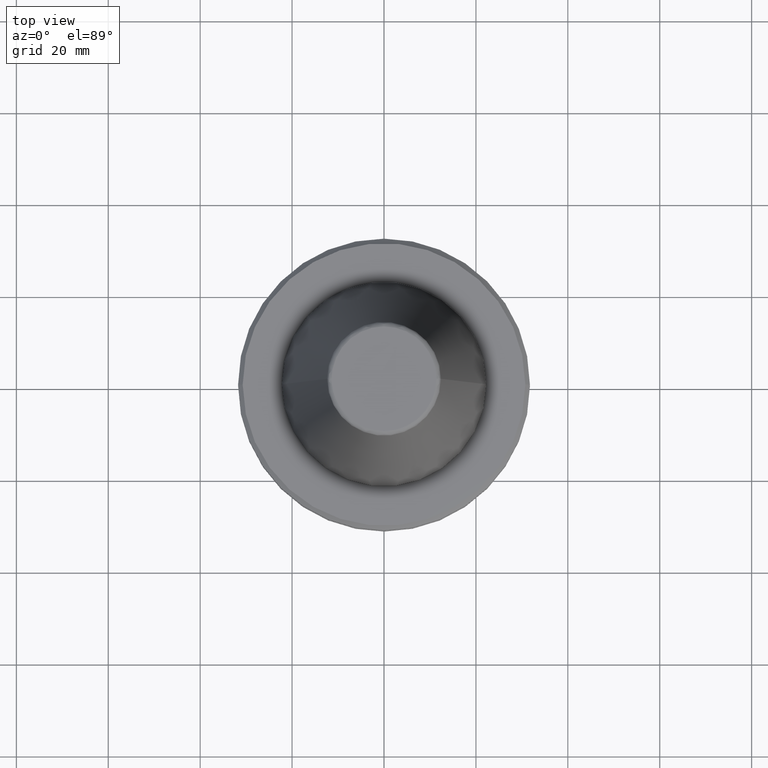
[diagram: clean part render]
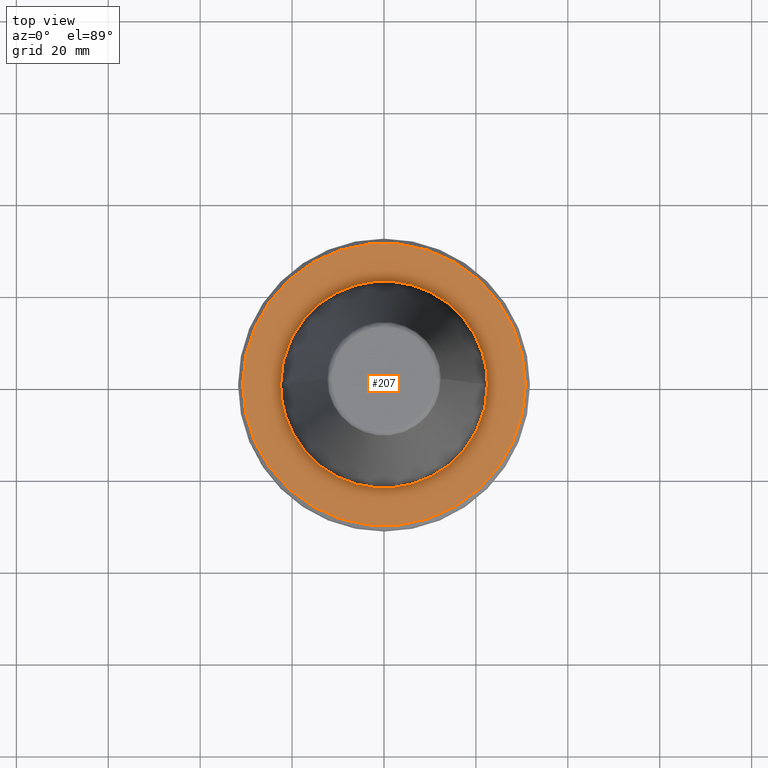
[diagram: same view with one face highlighted and labeled with its STEP entity id]
A machine part, top view. The second image highlights one B-rep face of the part: STEP entity #207.
In plain terms, the highlighted planar face has unit normal (0, 0, 1).
Its self-contained STEP definition (entity closure, byte-faithful):
#3 = CARTESIAN_POINT ( 'NONE',  ( -13.61204652640028800, -17.98264380950038800, -3.200000000000000200 ) ) ;
#4 = CARTESIAN_POINT ( 'NONE',  ( -17.98264380950361400, 13.61204652639205500, -3.199999999999999700 ) ) ;
#7 = CARTESIAN_POINT ( 'NONE',  ( -4.719991316688983800, 22.00072453872944300, -3.200000000000000600 ) ) ;
#11 = CARTESIAN_POINT ( 'NONE',  ( 3.797919010150632600, 22.17744484798479100, -3.200000000000000600 ) ) ;
#16 = CARTESIAN_POINT ( 'NONE',  ( 22.49999999999999600, -0.6880163828697204400, -3.199999999999998800 ) ) ;
#19 = CARTESIAN_POINT ( 'NONE',  ( 10.02279629557633300, 20.16961076430403600, -3.200000000000000600 ) ) ;
#22 = CARTESIAN_POINT ( 'NONE',  ( 22.13216582914422800, -4.051871761185046800, -3.199999999999999300 ) ) ;
#24 = CARTESIAN_POINT ( 'NONE',  ( 19.24838585783446000, 11.67597141481715200, -3.199999999999999700 ) ) ;
#28 = CARTESIAN_POINT ( 'NONE',  ( 19.18907189198100100, -11.75138774876444200, -3.200000000000001100 ) ) ;
#35 = CARTESIAN_POINT ( 'NONE',  ( -22.12045798509555200, -4.115310202398622300, -3.200000000000000200 ) ) ;
#41 = CARTESIAN_POINT ( 'NONE',  ( -3.946081902448917300, -22.15133589248955200, -3.200000000000000600 ) ) ;
#50 = CARTESIAN_POINT ( 'NONE',  ( 14.49938022714922100, -17.23607257882569900, -3.199999999999999300 ) ) ;
#66 = CARTESIAN_POINT ( 'NONE',  ( -22.13216582914423100, 4.051871761184235000, -3.200000000000000200 ) ) ;
#88 = CARTESIAN_POINT ( 'NONE',  ( -19.24838585782649900, -11.67597141482940200, -3.199999999999999700 ) ) ;
#100 = ORIENTED_EDGE ( 'NONE', *, *, #1181, .F. ) ;
#103 = CARTESIAN_POINT ( 'NONE',  ( -22.50000000000000400, 2.755455298081544800E-015, -3.199999999999999300 ) ) ;
#105 = CARTESIAN_POINT ( 'NONE',  ( -8.896980882711639900, 20.66783356944006700, -3.199999999999999700 ) ) ;
#111 = CARTESIAN_POINT ( 'NONE',  ( -20.64043889494947600, 8.988933404968230800, -3.200000000000000600 ) ) ;
#114 = DIRECTION ( 'NONE',  ( -1.000000000000000000, 0.0000000000000000000, 0.0000000000000000000 ) ) ;
#115 = ORIENTED_EDGE ( 'NONE', *, *, #595, .T. ) ;
#116 = CARTESIAN_POINT ( 'NONE',  ( -12.63533988221804100, 18.61742605470986000, -3.200000000000000200 ) ) ;
#120 = CARTESIAN_POINT ( 'NONE',  ( -11.75138774876684200, -19.18907189198004900, -3.200000000000000200 ) ) ;
#122 = CARTESIAN_POINT ( 'NONE',  ( -4.251028217307362100, 22.09485092206773900, -3.200000000000001100 ) ) ;
#128 = CARTESIAN_POINT ( 'NONE',  ( -4.071751450877116900, -22.12851860711453300, -3.199999999999999700 ) ) ;
#129 = CARTESIAN_POINT ( 'NONE',  ( 4.071751450878374500, 22.12851860711415200, -3.200000000000000200 ) ) ;
#132 = VERTEX_POINT ( 'NONE', #450 ) ;
#134 = CARTESIAN_POINT ( 'NONE',  ( 11.99256734167953400, 19.03780993567986700, -3.199999999999999300 ) ) ;
#137 = CARTESIAN_POINT ( 'NONE',  ( 22.13986916256529000, -4.009566559498702000, -3.199999999999999300 ) ) ;
#139 = CARTESIAN_POINT ( 'NONE',  ( 20.79589492657334300, 8.590524805355373800, -3.199999999999999300 ) ) ;
#143 = CARTESIAN_POINT ( 'NONE',  ( 18.93590339580105900, -12.15280497094321500, -3.200000000000000200 ) ) ;
#159 = CARTESIAN_POINT ( 'NONE',  ( -21.18878749287234700, -7.603831144579803700, -3.199999999999998800 ) ) ;
#162 = CARTESIAN_POINT ( 'NONE',  ( -3.797919010166013600, -22.17744484798386800, -3.200000000000001100 ) ) ;
#169 = CARTESIAN_POINT ( 'NONE',  ( -18.06135158014722800, -13.42792791066820300, -3.200000000000000600 ) ) ;
#170 = CARTESIAN_POINT ( 'NONE',  ( -22.50000000000000400, 2.755455298081544800E-015, -3.199999999999999300 ) ) ;
#191 = CIRCLE ( 'NONE', #1575, 30.74999999999994300 ) ;
#207 = ADVANCED_FACE ( 'NONE', ( #342, #1240 ), #631, .T. ) ;
#218 = CARTESIAN_POINT ( 'NONE',  ( -1.715646395057947200, -22.45307472456143200, -3.200000000000000600 ) ) ;
#233 = AXIS2_PLACEMENT_3D ( 'NONE', #1094, #1463, #990 ) ;
#238 = CARTESIAN_POINT ( 'NONE',  ( 8.988933404959995600, 20.64043889495324200, -3.200000000000000600 ) ) ;
#242 = CARTESIAN_POINT ( 'NONE',  ( 2.741286511513688400, -22.37475781689234500, -3.199999999999999700 ) ) ;
#244 = CARTESIAN_POINT ( 'NONE',  ( 22.17743819738469600, -3.797954953886299600, -3.200000000000000600 ) ) ;
#247 = CARTESIAN_POINT ( 'NONE',  ( -21.14787063409543700, 7.686207123284956900, -3.200000000000000200 ) ) ;
#254 = CARTESIAN_POINT ( 'NONE',  ( -12.39175045570897300, 18.78040064549299600, -3.199999999999999700 ) ) ;
#260 = CARTESIAN_POINT ( 'NONE',  ( -6.571610993404996200, 21.54071728403503300, -3.199999999999999700 ) ) ;
#265 = CARTESIAN_POINT ( 'NONE',  ( 5.873028755120320600, 21.74157624393063400, -3.200000000000000600 ) ) ;
#267 = EDGE_LOOP ( 'NONE', ( #100, #272 ) ) ;
#272 = ORIENTED_EDGE ( 'NONE', *, *, #958, .F. ) ;
#273 = CARTESIAN_POINT ( 'NONE',  ( 12.23098025896375600, 18.88550870197690300, -3.199999999999999700 ) ) ;
#276 = CARTESIAN_POINT ( 'NONE',  ( 21.99164062164117800, -4.811519987949947300, -3.200000000000000600 ) ) ;
#282 = CARTESIAN_POINT ( 'NONE',  ( 17.98264380952407700, -13.61204652636657500, -3.199999999999999700 ) ) ;
#284 = CARTESIAN_POINT ( 'NONE',  ( -8.197263642347373000, -20.95368502148340900, -3.199999999999999700 ) ) ;
#296 = CARTESIAN_POINT ( 'NONE',  ( -22.37479026312430700, -2.741111199249898400, -3.200000000000000600 ) ) ;
#303 = CARTESIAN_POINT ( 'NONE',  ( -8.112282896148109000, -20.98673507276421500, -3.200000000000000200 ) ) ;
#322 = CARTESIAN_POINT ( 'NONE',  ( 22.10760170058146200, 4.183831549483062200, -3.200000000000000200 ) ) ;
#339 = CARTESIAN_POINT ( 'NONE',  ( 22.50000000000000400, 0.0000000000000000000, -3.199999999999999300 ) ) ;
#342 = FACE_BOUND ( 'NONE', #1466, .T. ) ;
#343 = CARTESIAN_POINT ( 'NONE',  ( 5.341505914814308500, -21.86223353763812900, -3.199999999999999700 ) ) ;
#352 = CARTESIAN_POINT ( 'NONE',  ( -22.12851860711429500, 4.071751450877952600, -3.199999999999999300 ) ) ;
#368 = CARTESIAN_POINT ( 'NONE',  ( 20.88510905071724400, 8.370451108366499000, -3.200000000000001100 ) ) ;
#372 = CARTESIAN_POINT ( 'NONE',  ( -22.45304634867162000, 1.715799754908170300, -3.200000000000000600 ) ) ;
#378 = CARTESIAN_POINT ( 'NONE',  ( -7.984698353444732000, -21.03591195338748700, -3.200000000000000200 ) ) ;
#379 = CARTESIAN_POINT ( 'NONE',  ( -11.99256734168715800, -19.03780993567515600, -3.200000000000000200 ) ) ;
#380 = CARTESIAN_POINT ( 'NONE',  ( -19.53083148215308600, 11.18287332202958400, -3.199999999999999300 ) ) ;
#385 = CARTESIAN_POINT ( 'NONE',  ( 8.458563634139736100, -20.84958280862343500, -3.200000000000000600 ) ) ;
#386 = CARTESIAN_POINT ( 'NONE',  ( -10.69502432680689100, 19.82135572082859200, -3.200000000000000600 ) ) ;
#389 = CARTESIAN_POINT ( 'NONE',  ( -20.93772414133938800, 8.237955812653009200, -3.200000000000000200 ) ) ;
#390 = CARTESIAN_POINT ( 'NONE',  ( -22.06440325785796100, -4.407618502892575000, -3.200000000000000200 ) ) ;
#391 = CARTESIAN_POINT ( 'NONE',  ( -4.407618502888016800, 22.06440325785875700, -3.199999999999999300 ) ) ;
#395 = CARTESIAN_POINT ( 'NONE',  ( 7.984698353428139100, 21.03591195339260300, -3.200000000000000200 ) ) ;
#400 = CARTESIAN_POINT ( 'NONE',  ( 14.81177920650271000, 17.00797338683744500, -3.200000000000000600 ) ) ;
#402 = CARTESIAN_POINT ( 'NONE',  ( 21.14787063408966400, -7.686207123305460500, -3.200000000000000600 ) ) ;
#405 = CARTESIAN_POINT ( 'NONE',  ( 20.84958280862257900, 8.458563634141711400, -3.200000000000000200 ) ) ;
#408 = CARTESIAN_POINT ( 'NONE',  ( -22.31609819896381800, 2.907458251726792000, -3.199999999999999700 ) ) ;
#416 = CARTESIAN_POINT ( 'NONE',  ( 1.375857497312903900, -22.49996757041163400, -3.199999999999999300 ) ) ;
#422 = CARTESIAN_POINT ( 'NONE',  ( 22.00072453873180600, 4.719991316681966300, -3.200000000000000200 ) ) ;
#449 = CARTESIAN_POINT ( 'NONE',  ( 4.251028217301676900, -22.09485092206981000, -3.200000000000000200 ) ) ;
#450 = CARTESIAN_POINT ( 'NONE',  ( -30.74999999999994300, 0.0000000000000000000, -3.200000000000036100 ) ) ;
#455 = CARTESIAN_POINT ( 'NONE',  ( -22.22708190165376200, 3.501431974159047400, -3.199999999999999700 ) ) ;
#460 = CARTESIAN_POINT ( 'NONE',  ( 22.50000000000000400, 0.0000000000000000000, -3.199999999999999300 ) ) ;
#463 = CARTESIAN_POINT ( 'NONE',  ( -20.84958280862066700, -8.458563634144654800, -3.200000000000000600 ) ) ;
#488 = CARTESIAN_POINT ( 'NONE',  ( -14.81177920650302200, -17.00797338683712900, -3.199999999999999300 ) ) ;
#497 = CARTESIAN_POINT ( 'NONE',  ( -18.93590339580232400, 12.15280497094196100, -3.199999999999999700 ) ) ;
#500 = CARTESIAN_POINT ( 'NONE',  ( -20.90345235396920400, -8.324524703927284700, -3.199999999999999700 ) ) ;
#501 = CARTESIAN_POINT ( 'NONE',  ( -8.458563634142274500, 20.84958280862222700, -3.200000000000000200 ) ) ;
#503 = CARTESIAN_POINT ( 'NONE',  ( 12.47437238289376500, -18.72563884435562500, -3.200000000000000600 ) ) ;
#506 = CARTESIAN_POINT ( 'NONE',  ( -1.375857497237935400, 22.49996757040714000, -3.199999999999999700 ) ) ;
#509 = B_SPLINE_CURVE_WITH_KNOTS ( 'NONE', 3,
 ( #170, #725, #372, #408, #455, #1250, #536, #530, #66, #352, #1428, #949, #1582, #247, #606, #727, #1293, #389, #111, #955, #380, #1066, #1433, #497, #1194, #4, #1418, #1314, #619, #848, #735, #116, #963, #254, #1070, #386, #1202, #105, #624, #501, #1317, #738, #1439, #260, #851, #7, #391, #122, #1569, #967, #1207, #1078, #506, #1322, #630, #1444, #743, #11, #973, #944, #855, #129, #1083, #265, #639, #1211, #395, #747, #511, #1328, #238, #19, #1448, #859, #134, #978, #273, #1087, #400, #1334, #1218, #1061, #516, #1454, #644, #983, #24, #752, #1096, #866, #139, #405, #368, #1518, #560, #1489, #912, #422, #673, #1269, #322, #1560, #1533, #1389, #576, #339 ),
 .UNSPECIFIED., .F., .F.,
 ( 4, 1, 1, 1, 1, 1, 2, 2, 1, 1, 1, 1, 2, 2, 1, 1, 1, 2, 2, 2, 1, 1, 1, 2, 2, 1, 1, 1, 1, 2, 2, 1, 1, 1, 1, 1, 2, 2, 2, 1, 1, 1, 1, 1, 2, 2, 1, 1, 1, 1, 2, 2, 1, 1, 1, 2, 2, 2, 1, 1, 1, 2, 2, 1, 1, 1, 1, 2, 2, 1, 1, 1, 1, 1, 2, 2, 4 ),
 ( 0.0000000000000000000, 0.03124999999999839000, 0.04687499999999758500, 0.05468749999999717600, 0.05859374999999699500, 0.06054687499999689800, 0.06152343749999685700, 0.06249999999999680800, 0.09374999999999644700, 0.1093749999999962800, 0.1171874999999962000, 0.1210937499999961300, 0.1230468749999961400, 0.1249999999999961400, 0.1562499999999958900, 0.1718749999999958400, 0.1796874999999957800, 0.1835937499999957800, 0.1874999999999957800, 0.2499999999999961100, 0.2812499999999963400, 0.2968749999999964500, 0.3046874999999965000, 0.3085937499999965600, 0.3124999999999965600, 0.3437499999999969500, 0.3593749999999971700, 0.3671874999999973400, 0.3710937499999974500, 0.3730468749999974500, 0.3749999999999974500, 0.4062499999999965000, 0.4218749999999960000, 0.4296874999999957800, 0.4335937499999956700, 0.4355468749999956100, 0.4365234374999956100, 0.4374999999999956100, 0.4999999999999944500, 0.5312499999999938900, 0.5468749999999936700, 0.5546874999999936700, 0.5585937499999935600, 0.5605468749999935600, 0.5615234374999934500, 0.5624999999999934500, 0.5937499999999932300, 0.6093749999999931200, 0.6171874999999931200, 0.6210937499999930100, 0.6230468749999930100, 0.6249999999999930100, 0.6562499999999930100, 0.6718749999999931200, 0.6796874999999932300, 0.6835937499999932300, 0.6874999999999932300, 0.7499999999999935600, 0.7812499999999936700, 0.7968749999999937800, 0.8046874999999938900, 0.8085937499999938900, 0.8124999999999938900, 0.8437499999999942300, 0.8593749999999944500, 0.8671874999999946700, 0.8710937499999947800, 0.8730468749999948900, 0.8749999999999950000, 0.9062499999999963400, 0.9218749999999971100, 0.9296874999999975600, 0.9335937499999976700, 0.9355468749999977800, 0.9365234374999977800, 0.9374999999999978900, 1.000000000000000000 ),
 .UNSPECIFIED. ) ;
#511 = CARTESIAN_POINT ( 'NONE',  ( 8.197263642342381500, 20.95368502148494400, -3.199999999999999700 ) ) ;
#516 = CARTESIAN_POINT ( 'NONE',  ( 18.45365423866382000, 12.87560569879649600, -3.200000000000000200 ) ) ;
#521 = CARTESIAN_POINT ( 'NONE',  ( 20.64043889494423200, -8.988933404973398200, -3.200000000000001100 ) ) ;
#530 = CARTESIAN_POINT ( 'NONE',  ( -22.13986916256529700, 4.009566559497096200, -3.200000000000000200 ) ) ;
#536 = CARTESIAN_POINT ( 'NONE',  ( -22.15133245634663700, 3.946100473368277900, -3.200000000000000200 ) ) ;
#540 = CARTESIAN_POINT ( 'NONE',  ( 4.115307463144500100, -22.12045849206793200, -3.200000000000000600 ) ) ;
#560 = CARTESIAN_POINT ( 'NONE',  ( 21.18878749287739200, 7.603831144559534600, -3.200000000000000600 ) ) ;
#576 = CARTESIAN_POINT ( 'NONE',  ( 22.50000000000000400, 1.376388306145680500, -3.200000000000000200 ) ) ;
#590 = CARTESIAN_POINT ( 'NONE',  ( 10.69502432678837800, -19.82135572083744200, -3.199999999999999700 ) ) ;
#595 = EDGE_CURVE ( 'NONE', #1098, #1411, #509, .T. ) ;
#606 = CARTESIAN_POINT ( 'NONE',  ( -21.03591195339058500, 7.984698353433742600, -3.200000000000000600 ) ) ;
#613 = CARTESIAN_POINT ( 'NONE',  ( -7.686207123305462300, -21.14787063408966000, -3.200000000000000600 ) ) ;
#618 = CARTESIAN_POINT ( 'NONE',  ( -19.82135572081725200, -10.69502432682423000, -3.200000000000000600 ) ) ;
#619 = CARTESIAN_POINT ( 'NONE',  ( -14.49938022714616500, 17.23607257882436300, -3.199999999999999700 ) ) ;
#624 = CARTESIAN_POINT ( 'NONE',  ( -8.590524805356333000, 20.79589492657273900, -3.199999999999999700 ) ) ;
#630 = CARTESIAN_POINT ( 'NONE',  ( 1.715646394992351700, 22.45307472456536100, -3.200000000000000600 ) ) ;
#631 = PLANE ( 'NONE',  #233 ) ;
#639 = CARTESIAN_POINT ( 'NONE',  ( 7.086048807648322300, 21.36063849916836300, -3.200000000000000600 ) ) ;
#642 = CARTESIAN_POINT ( 'NONE',  ( 22.31609819896382200, -2.907458251744042200, -3.200000000000000600 ) ) ;
#644 = CARTESIAN_POINT ( 'NONE',  ( 18.72563884435662000, 12.47437238289156800, -3.199999999999999300 ) ) ;
#646 = CARTESIAN_POINT ( 'NONE',  ( 19.53083148214621900, -11.18287332203636600, -3.200000000000000200 ) ) ;
#673 = CARTESIAN_POINT ( 'NONE',  ( 22.06440325786003600, 4.407618502884258900, -3.200000000000000200 ) ) ;
#679 = CARTESIAN_POINT ( 'NONE',  ( 30.74999999999994300, 3.827021247335477300E-015, -3.200000000000036100 ) ) ;
#697 = CARTESIAN_POINT ( 'NONE',  ( -16.45896426179448100, -15.36086717162741000, -3.200000000000001100 ) ) ;
#725 = CARTESIAN_POINT ( 'NONE',  ( -22.50000000000000700, 0.6880163828565797300, -3.200000000000001100 ) ) ;
#727 = CARTESIAN_POINT ( 'NONE',  ( -20.98673507276603100, 8.112282896141666200, -3.200000000000000600 ) ) ;
#733 = CARTESIAN_POINT ( 'NONE',  ( -18.61742605471202700, -12.63533988221470800, -3.199999999999999700 ) ) ;
#735 = CARTESIAN_POINT ( 'NONE',  ( -12.87560569880213800, 18.45365423866010000, -3.200000000000001100 ) ) ;
#738 = CARTESIAN_POINT ( 'NONE',  ( -8.324524703927975700, 20.90345235396907600, -3.199999999999999700 ) ) ;
#743 = CARTESIAN_POINT ( 'NONE',  ( 3.501364879195867800, 22.22709431610727600, -3.200000000000000600 ) ) ;
#747 = CARTESIAN_POINT ( 'NONE',  ( 8.112282896138385300, 20.98673507276721400, -3.200000000000000200 ) ) ;
#749 = CARTESIAN_POINT ( 'NONE',  ( 22.15133245634663300, -3.946100473371058700, -3.199999999999999700 ) ) ;
#752 = CARTESIAN_POINT ( 'NONE',  ( 19.82135572083119300, 10.69502432680279600, -3.200000000000000600 ) ) ;
#753 = CARTESIAN_POINT ( 'NONE',  ( 20.16961076428826500, -10.02279629559978100, -3.199999999999998800 ) ) ;
#766 = CARTESIAN_POINT ( 'NONE',  ( 4.407618502877016700, -22.06440325786277500, -3.200000000000000600 ) ) ;
#771 = CARTESIAN_POINT ( 'NONE',  ( -22.00072453872795100, -4.719991316697491600, -3.200000000000000600 ) ) ;
#817 = CARTESIAN_POINT ( 'NONE',  ( 7.603831144541866000, -21.18878749288407800, -3.200000000000000200 ) ) ;
#824 = CARTESIAN_POINT ( 'NONE',  ( -18.78040064549380300, -12.39175045570773800, -3.200000000000000600 ) ) ;
#848 = CARTESIAN_POINT ( 'NONE',  ( -13.42792791067768300, 18.06135158014102500, -3.200000000000000200 ) ) ;
#850 = CARTESIAN_POINT ( 'NONE',  ( -22.10760170058084000, -4.183831549485550900, -3.200000000000000200 ) ) ;
#851 = CARTESIAN_POINT ( 'NONE',  ( -5.341505914849514100, 21.86223353762529300, -3.200000000000000600 ) ) ;
#854 = CARTESIAN_POINT ( 'NONE',  ( -8.237955812652499400, -20.93772414133978200, -3.199999999999999700 ) ) ;
#855 = CARTESIAN_POINT ( 'NONE',  ( 4.051866326834534100, 22.13216683465163800, -3.200000000000001100 ) ) ;
#859 = CARTESIAN_POINT ( 'NONE',  ( 11.75138774875418000, 19.18907189198790100, -3.200000000000001100 ) ) ;
#863 = CARTESIAN_POINT ( 'NONE',  ( 22.12851860711453600, -4.071751450877114200, -3.200000000000000200 ) ) ;
#866 = CARTESIAN_POINT ( 'NONE',  ( 20.66783356944120300, 8.896980882709847500, -3.200000000000000200 ) ) ;
#868 = CARTESIAN_POINT ( 'NONE',  ( 19.03780993567572800, -11.99256734168571200, -3.200000000000000200 ) ) ;
#880 = CARTESIAN_POINT ( 'NONE',  ( 12.87560569880346700, -18.45365423866068300, -3.200000000000000600 ) ) ;
#888 = CARTESIAN_POINT ( 'NONE',  ( -2.907343231839132800, -22.31611948088118800, -3.200000000000000600 ) ) ;
#898 = CARTESIAN_POINT ( 'NONE',  ( 13.42792791067997600, -18.06135158014202000, -3.199999999999999700 ) ) ;
#912 = CARTESIAN_POINT ( 'NONE',  ( 21.86223353762935800, 5.341505914837489000, -3.200000000000000600 ) ) ;
#930 = CARTESIAN_POINT ( 'NONE',  ( 0.0000000000000000000, 0.0000000000000000000, -3.200000000000036100 ) ) ;
#933 = CARTESIAN_POINT ( 'NONE',  ( -12.15280497094398100, -18.93590339580075400, -3.199999999999999700 ) ) ;
#944 = CARTESIAN_POINT ( 'NONE',  ( 4.009555819168163300, 22.13987114982794000, -3.199999999999999700 ) ) ;
#948 = CARTESIAN_POINT ( 'NONE',  ( -0.6879287486564484900, -22.50001621479418300, -3.200000000000000200 ) ) ;
#949 = CARTESIAN_POINT ( 'NONE',  ( -21.74157624392201900, 5.873028755144217100, -3.200000000000000200 ) ) ;
#951 = CARTESIAN_POINT ( 'NONE',  ( -22.50000000000000400, 2.755455298081544800E-015, -3.199999999999999300 ) ) ;
#953 = CARTESIAN_POINT ( 'NONE',  ( -4.051866326836864700, -22.13216683465148900, -3.199999999999999700 ) ) ;
#955 = CARTESIAN_POINT ( 'NONE',  ( -20.16961076429744200, 10.02279629559074100, -3.199999999999999300 ) ) ;
#958 = EDGE_CURVE ( 'NONE', #1532, #132, #976, .T. ) ;
#963 = CARTESIAN_POINT ( 'NONE',  ( -12.47437238289334600, 18.72563884435544800, -3.200000000000000200 ) ) ;
#966 = CARTESIAN_POINT ( 'NONE',  ( -22.11603594838243900, -4.139014538617989700, -3.200000000000000600 ) ) ;
#967 = CARTESIAN_POINT ( 'NONE',  ( -4.139014538617297000, 22.11603594838256000, -3.200000000000000200 ) ) ;
#971 = CARTESIAN_POINT ( 'NONE',  ( -5.873028755191068500, -21.74157624390884200, -3.200000000000001100 ) ) ;
#973 = CARTESIAN_POINT ( 'NONE',  ( 3.946081902440961000, 22.15133589249003200, -3.200000000000000600 ) ) ;
#976 = CIRCLE ( 'NONE', #1060, 30.74999999999994300 ) ;
#978 = CARTESIAN_POINT ( 'NONE',  ( 12.15280497093997500, 18.93590339580323000, -3.200000000000000200 ) ) ;
#980 = CARTESIAN_POINT ( 'NONE',  ( 21.74157624390884500, -5.873028755191072900, -3.200000000000000200 ) ) ;
#981 = CARTESIAN_POINT ( 'NONE',  ( -17.23607257883263300, -14.49938022713351800, -3.200000000000000200 ) ) ;
#983 = CARTESIAN_POINT ( 'NONE',  ( 18.78040064549280100, 12.39175045570927500, -3.199999999999998800 ) ) ;
#985 = CARTESIAN_POINT ( 'NONE',  ( 18.88550870197563500, -12.23098025896565000, -3.200000000000000200 ) ) ;
#989 = B_SPLINE_CURVE_WITH_KNOTS ( 'NONE', 3,
 ( #1214, #16, #1329, #642, #1450, #244, #749, #137, #22, #863, #276, #980, #1337, #402, #1090, #1456, #1404, #1220, #521, #753, #646, #28, #868, #143, #985, #282, #1099, #1577, #50, #898, #880, #1200, #503, #1280, #1544, #590, #1438, #1201, #1548, #385, #1039, #1401, #817, #1156, #343, #999, #766, #449, #1480, #1304, #540, #242, #416, #948, #218, #888, #1235, #162, #41, #1166, #953, #128, #1046, #971, #1309, #613, #378, #303, #284, #854, #1063, #1441, #1192, #120, #379, #933, #1427, #3, #488, #697, #981, #169, #1103, #733, #1184, #824, #88, #618, #1469, #1462, #1352, #463, #1111, #500, #159, #994, #1442, #771, #390, #1077, #850, #966, #35, #296, #1097, #103 ),
 .UNSPECIFIED., .F., .F.,
 ( 4, 1, 1, 1, 1, 1, 2, 2, 1, 1, 1, 1, 2, 2, 1, 1, 1, 2, 2, 2, 1, 1, 1, 2, 2, 1, 1, 1, 1, 2, 2, 1, 1, 1, 1, 1, 2, 2, 2, 1, 1, 1, 1, 1, 2, 2, 1, 1, 1, 1, 2, 2, 1, 1, 1, 2, 2, 2, 1, 1, 1, 2, 2, 1, 1, 1, 1, 2, 2, 1, 1, 1, 1, 1, 2, 2, 4 ),
 ( 0.0000000000000000000, 0.03124999999999908400, 0.04687499999999860500, 0.05468749999999836900, 0.05859374999999825800, 0.06054687499999819600, 0.06152343749999818900, 0.06249999999999818200, 0.09374999999999732200, 0.1093749999999968900, 0.1171874999999966700, 0.1210937499999965400, 0.1230468749999965400, 0.1249999999999965300, 0.1562499999999963600, 0.1718749999999962500, 0.1796874999999961700, 0.1835937499999960900, 0.1874999999999960000, 0.2499999999999953400, 0.2812499999999949500, 0.2968749999999948400, 0.3046874999999947800, 0.3085937499999947800, 0.3124999999999947800, 0.3437499999999951200, 0.3593749999999953400, 0.3671874999999953900, 0.3710937499999954500, 0.3730468749999955000, 0.3749999999999955600, 0.4062499999999958400, 0.4218749999999960000, 0.4296874999999960600, 0.4335937499999960600, 0.4355468749999960600, 0.4365234374999960600, 0.4374999999999960000, 0.4999999999999953400, 0.5312499999999950000, 0.5468749999999947800, 0.5546874999999946700, 0.5585937499999946700, 0.5605468749999945600, 0.5615234374999945600, 0.5624999999999944500, 0.5937499999999942300, 0.6093749999999941200, 0.6171874999999940000, 0.6210937499999938900, 0.6230468749999940000, 0.6249999999999940000, 0.6562499999999947800, 0.6718749999999952300, 0.6796874999999954500, 0.6835937499999955600, 0.6874999999999955600, 0.7499999999999982200, 0.7812499999999995600, 0.7968750000000002200, 0.8046875000000005600, 0.8085937500000007800, 0.8125000000000008900, 0.8437500000000022200, 0.8593750000000028900, 0.8671875000000032200, 0.8710937500000033300, 0.8730468750000034400, 0.8750000000000034400, 0.9062500000000028900, 0.9218750000000026600, 0.9296875000000025500, 0.9335937500000024400, 0.9355468750000023300, 0.9365234375000023300, 0.9375000000000022200, 1.000000000000000000 ),
 .UNSPECIFIED. ) ;
#990 = DIRECTION ( 'NONE',  ( 1.000000000000000000, 0.0000000000000000000, -0.0000000000000000000 ) ) ;
#994 = CARTESIAN_POINT ( 'NONE',  ( -21.54071728403163600, -6.571610993424445500, -3.200000000000000600 ) ) ;
#999 = CARTESIAN_POINT ( 'NONE',  ( 4.719991316668444600, -22.00072453873692200, -3.200000000000000200 ) ) ;
#1039 = CARTESIAN_POINT ( 'NONE',  ( 8.370451108365493600, -20.88510905071769100, -3.200000000000001100 ) ) ;
#1046 = CARTESIAN_POINT ( 'NONE',  ( -4.811519987949943700, -21.99164062164117100, -3.199999999999999700 ) ) ;
#1053 = DIRECTION ( 'NONE',  ( -1.000000000000000000, 0.0000000000000000000, 0.0000000000000000000 ) ) ;
#1060 = AXIS2_PLACEMENT_3D ( 'NONE', #930, #1296, #1053 ) ;
#1061 = CARTESIAN_POINT ( 'NONE',  ( 18.06135158014742400, 13.42792791066801300, -3.200000000000000600 ) ) ;
#1063 = CARTESIAN_POINT ( 'NONE',  ( -8.988933404976533500, -20.64043889494298900, -3.199999999999999700 ) ) ;
#1066 = CARTESIAN_POINT ( 'NONE',  ( -19.18907189198502300, 11.75138774876048900, -3.200000000000000600 ) ) ;
#1070 = CARTESIAN_POINT ( 'NONE',  ( -11.67597141481949700, 19.24838585783297900, -3.200000000000001100 ) ) ;
#1077 = CARTESIAN_POINT ( 'NONE',  ( -22.09485092206732700, -4.251028217309717600, -3.200000000000000600 ) ) ;
#1078 = CARTESIAN_POINT ( 'NONE',  ( -2.741286511587084400, 22.37475781688785000, -3.200000000000000200 ) ) ;
#1083 = CARTESIAN_POINT ( 'NONE',  ( 4.811519987909519200, 21.99164062165363400, -3.200000000000000200 ) ) ;
#1087 = CARTESIAN_POINT ( 'NONE',  ( 13.61204652639695000, 17.98264380950372400, -3.200000000000000200 ) ) ;
#1090 = CARTESIAN_POINT ( 'NONE',  ( 21.03591195338748300, -7.984698353444730200, -3.199999999999999300 ) ) ;
#1094 = CARTESIAN_POINT ( 'NONE',  ( 0.0000000000000000000, 0.0000000000000000000, -3.200000000000000200 ) ) ;
#1096 = CARTESIAN_POINT ( 'NONE',  ( 20.40055232577446300, 9.504079748842523000, -3.200000000000000600 ) ) ;
#1097 = CARTESIAN_POINT ( 'NONE',  ( -22.50000000000000700, -1.376388306158772500, -3.200000000000000600 ) ) ;
#1098 = VERTEX_POINT ( 'NONE', #951 ) ;
#1099 = CARTESIAN_POINT ( 'NONE',  ( 17.00797338681919900, -14.81177920651095200, -3.200000000000000600 ) ) ;
#1103 = CARTESIAN_POINT ( 'NONE',  ( -18.45365423866372400, -12.87560569879659900, -3.200000000000001100 ) ) ;
#1111 = CARTESIAN_POINT ( 'NONE',  ( -20.88510905071626700, -8.370451108368008900, -3.199999999999999700 ) ) ;
#1156 = CARTESIAN_POINT ( 'NONE',  ( 6.571610993358049800, -21.54071728405216400, -3.200000000000000600 ) ) ;
#1165 = ORIENTED_EDGE ( 'NONE', *, *, #1168, .T. ) ;
#1166 = CARTESIAN_POINT ( 'NONE',  ( -4.009555819172765800, -22.13987114982767300, -3.200000000000000200 ) ) ;
#1168 = EDGE_CURVE ( 'NONE', #1411, #1098, #989, .T. ) ;
#1181 = EDGE_CURVE ( 'NONE', #132, #1532, #191, .T. ) ;
#1184 = CARTESIAN_POINT ( 'NONE',  ( -18.72563884435658800, -12.47437238289159500, -3.200000000000000200 ) ) ;
#1192 = CARTESIAN_POINT ( 'NONE',  ( -11.18287332204048700, -19.53083148214458500, -3.200000000000000600 ) ) ;
#1194 = CARTESIAN_POINT ( 'NONE',  ( -18.88550870197691400, 12.23098025896405400, -3.200000000000000200 ) ) ;
#1200 = CARTESIAN_POINT ( 'NONE',  ( 12.63533988221884200, -18.61742605471019700, -3.200000000000000200 ) ) ;
#1201 = CARTESIAN_POINT ( 'NONE',  ( 8.896980882703543300, -20.66783356944393200, -3.199999999999999300 ) ) ;
#1202 = CARTESIAN_POINT ( 'NONE',  ( -9.504079748845599700, 20.40055232577251900, -3.200000000000001500 ) ) ;
#1206 = DIRECTION ( 'NONE',  ( -0.0000000000000000000, -0.0000000000000000000, -1.000000000000000000 ) ) ;
#1207 = CARTESIAN_POINT ( 'NONE',  ( -4.115307463143350800, 22.12045849206799600, -3.199999999999999700 ) ) ;
#1211 = CARTESIAN_POINT ( 'NONE',  ( 7.686207123274499500, 21.14787063409919600, -3.200000000000000600 ) ) ;
#1214 = CARTESIAN_POINT ( 'NONE',  ( 22.50000000000000400, 0.0000000000000000000, -3.199999999999999300 ) ) ;
#1218 = CARTESIAN_POINT ( 'NONE',  ( 17.23607257883289300, 14.49938022713325700, -3.200000000000000200 ) ) ;
#1220 = CARTESIAN_POINT ( 'NONE',  ( 20.93772414133970000, -8.237955812652693100, -3.200000000000000200 ) ) ;
#1235 = CARTESIAN_POINT ( 'NONE',  ( -3.501364879224580000, -22.22709431610556100, -3.200000000000000600 ) ) ;
#1240 = FACE_OUTER_BOUND ( 'NONE', #267, .T. ) ;
#1250 = CARTESIAN_POINT ( 'NONE',  ( -22.17743819738468900, 3.797954953880907400, -3.199999999999999700 ) ) ;
#1269 = CARTESIAN_POINT ( 'NONE',  ( 22.09485092206839200, 4.251028217305421500, -3.199999999999999700 ) ) ;
#1280 = CARTESIAN_POINT ( 'NONE',  ( 12.39175045571029600, -18.78040064549236700, -3.200000000000000200 ) ) ;
#1293 = CARTESIAN_POINT ( 'NONE',  ( -20.95368502148434700, 8.197263642344069000, -3.199999999999999300 ) ) ;
#1296 = DIRECTION ( 'NONE',  ( -0.0000000000000000000, -0.0000000000000000000, -1.000000000000000000 ) ) ;
#1304 = CARTESIAN_POINT ( 'NONE',  ( 4.139014538615635200, -22.11603594838316400, -3.200000000000000200 ) ) ;
#1309 = CARTESIAN_POINT ( 'NONE',  ( -7.086048807701388300, -21.36063849915201700, -3.200000000000001100 ) ) ;
#1314 = CARTESIAN_POINT ( 'NONE',  ( -15.36086717163463800, 16.45896426178976300, -3.200000000000001100 ) ) ;
#1317 = CARTESIAN_POINT ( 'NONE',  ( -8.370451108366790300, 20.88510905071707000, -3.200000000000000200 ) ) ;
#1322 = CARTESIAN_POINT ( 'NONE',  ( 0.6879287486189594700, 22.50001621479642500, -3.199999999999999300 ) ) ;
#1328 = CARTESIAN_POINT ( 'NONE',  ( 8.237955812653522600, 20.93772414133914200, -3.199999999999999700 ) ) ;
#1329 = CARTESIAN_POINT ( 'NONE',  ( 22.45304634867161300, -1.715799754931167900, -3.200000000000000200 ) ) ;
#1334 = CARTESIAN_POINT ( 'NONE',  ( 16.45896426179462000, 15.36086717162726200, -3.199999999999999700 ) ) ;
#1337 = CARTESIAN_POINT ( 'NONE',  ( 21.36063849915200700, -7.086048807701382100, -3.199999999999998800 ) ) ;
#1352 = CARTESIAN_POINT ( 'NONE',  ( -20.79589492657008900, -8.590524805360397300, -3.200000000000000200 ) ) ;
#1389 = CARTESIAN_POINT ( 'NONE',  ( 22.37479026312431400, 2.741111199236805400, -3.200000000000000600 ) ) ;
#1401 = CARTESIAN_POINT ( 'NONE',  ( 8.324524703929661500, -20.90345235396846500, -3.200000000000000600 ) ) ;
#1404 = CARTESIAN_POINT ( 'NONE',  ( 20.95368502148340500, -8.197263642347369500, -3.199999999999999700 ) ) ;
#1411 = VERTEX_POINT ( 'NONE', #460 ) ;
#1418 = CARTESIAN_POINT ( 'NONE',  ( -17.00797338682269500, 14.81177920651246400, -3.200000000000000600 ) ) ;
#1427 = CARTESIAN_POINT ( 'NONE',  ( -12.23098025896354500, -18.88550870197710900, -3.200000000000000200 ) ) ;
#1428 = CARTESIAN_POINT ( 'NONE',  ( -21.99164062164871000, 4.811519987923173100, -3.200000000000001100 ) ) ;
#1431 = CARTESIAN_POINT ( 'NONE',  ( 0.0000000000000000000, 0.0000000000000000000, -3.200000000000036100 ) ) ;
#1433 = CARTESIAN_POINT ( 'NONE',  ( -19.03780993567813700, 11.99256734168333200, -3.200000000000000200 ) ) ;
#1438 = CARTESIAN_POINT ( 'NONE',  ( 9.504079748831721000, -20.40055232577914500, -3.200000000000000600 ) ) ;
#1439 = CARTESIAN_POINT ( 'NONE',  ( -7.603831144568696100, 21.18878749287429700, -3.200000000000000200 ) ) ;
#1441 = CARTESIAN_POINT ( 'NONE',  ( -10.02279629560528400, -20.16961076428609100, -3.200000000000000600 ) ) ;
#1442 = CARTESIAN_POINT ( 'NONE',  ( -21.86223353762273500, -5.341505914864100600, -3.200000000000000600 ) ) ;
#1444 = CARTESIAN_POINT ( 'NONE',  ( 2.907343231789928200, 22.31611948088413700, -3.200000000000001100 ) ) ;
#1448 = CARTESIAN_POINT ( 'NONE',  ( 11.18287332201877700, 19.53083148215803900, -3.200000000000000600 ) ) ;
#1450 = CARTESIAN_POINT ( 'NONE',  ( 22.22708190165376200, -3.501431974169107800, -3.200000000000000200 ) ) ;
#1454 = CARTESIAN_POINT ( 'NONE',  ( 18.61742605471209400, 12.63533988221464600, -3.199999999999999700 ) ) ;
#1456 = CARTESIAN_POINT ( 'NONE',  ( 20.98673507276421500, -8.112282896148103700, -3.200000000000000200 ) ) ;
#1462 = CARTESIAN_POINT ( 'NONE',  ( -20.66783356943510700, -8.896980882719226700, -3.200000000000000200 ) ) ;
#1463 = DIRECTION ( 'NONE',  ( 0.0000000000000000000, 0.0000000000000000000, 1.000000000000000000 ) ) ;
#1466 = EDGE_LOOP ( 'NONE', ( #115, #1165 ) ) ;
#1469 = CARTESIAN_POINT ( 'NONE',  ( -20.40055232576401100, -9.504079748858595500, -3.199999999999999700 ) ) ;
#1480 = CARTESIAN_POINT ( 'NONE',  ( 4.183831549480899500, -22.10760170058227900, -3.200000000000000200 ) ) ;
#1489 = CARTESIAN_POINT ( 'NONE',  ( 21.54071728404044400, 6.571610993388965500, -3.200000000000000200 ) ) ;
#1518 = CARTESIAN_POINT ( 'NONE',  ( 20.90345235396888100, 8.324524703928553000, -3.200000000000000200 ) ) ;
#1532 = VERTEX_POINT ( 'NONE', #679 ) ;
#1533 = CARTESIAN_POINT ( 'NONE',  ( 22.12045798509555900, 4.115310202398825700, -3.200000000000000600 ) ) ;
#1544 = CARTESIAN_POINT ( 'NONE',  ( 11.67597141480891300, -19.24838585783804100, -3.200000000000000600 ) ) ;
#1548 = CARTESIAN_POINT ( 'NONE',  ( 8.590524805351991600, -20.79589492657481400, -3.199999999999999700 ) ) ;
#1560 = CARTESIAN_POINT ( 'NONE',  ( 22.11603594838275600, 4.139014538616730300, -3.200000000000001100 ) ) ;
#1569 = CARTESIAN_POINT ( 'NONE',  ( -4.183831549484186700, 22.10760170058108200, -3.199999999999999700 ) ) ;
#1575 = AXIS2_PLACEMENT_3D ( 'NONE', #1431, #1206, #114 ) ;
#1577 = CARTESIAN_POINT ( 'NONE',  ( 15.36086717163637700, -16.45896426179050900, -3.199999999999999700 ) ) ;
#1582 = CARTESIAN_POINT ( 'NONE',  ( -21.36063849916189700, 7.086048807666240500, -3.199999999999999300 ) ) ;